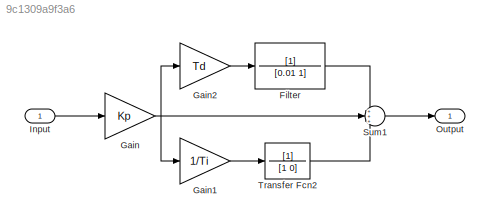
MODEL slx_9c1309a9f3a6
KIND model
CONFIG AbsTol = 1e-4
CONFIG EnableMultiTasking = off
CONFIG FixedStep = 1e-2
CONFIG MaxStep = auto
CONFIG MinStep = auto
CONFIG RelTol = 1e-4
CONFIG SampleTimeConstraint = Unconstrained
CONFIG SolverName = ode45
CONFIG StartTime = 0.0
CONFIG StopTime = 10.0
BLOCK [TransferFcn] Filter
  Denominator = [0.01 1]
BLOCK [Gain] Gain
  Gain = Kp
BLOCK [Gain] Gain1
  Gain = 1/Ti
BLOCK [Gain] Gain2
  Gain = Td
BLOCK [Inport] Input
BLOCK [Outport] Output
BLOCK [Sum] Sum1
  Inputs = +++
BLOCK [TransferFcn] Transfer Fcn2
  Denominator = [1 0]
LINE Filter:1 -> Sum1:1
LINE Gain1:1 -> Transfer Fcn2:1
LINE Gain2:1 -> Filter:1
NET Gain:1 -> Gain1:1, Gain2:1, Sum1:2
LINE Input:1 -> Gain:1
LINE Sum1:1 -> Output:1
LINE Transfer Fcn2:1 -> Sum1:3
note: NET lines group one-source signal fan-out (src -> all destinations, sorted); 1:1 wires keep LINE
